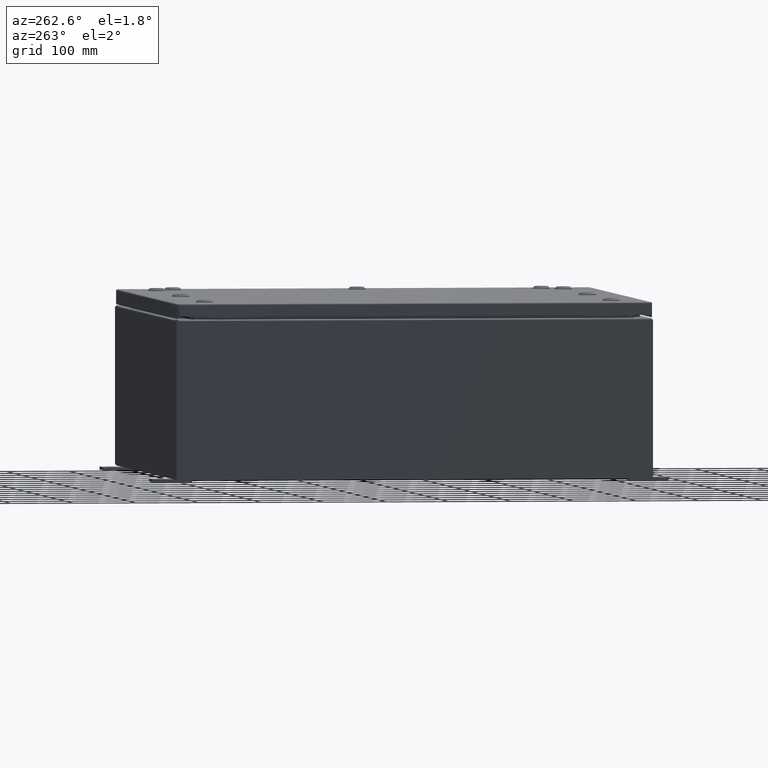
[diagram: clean part render]
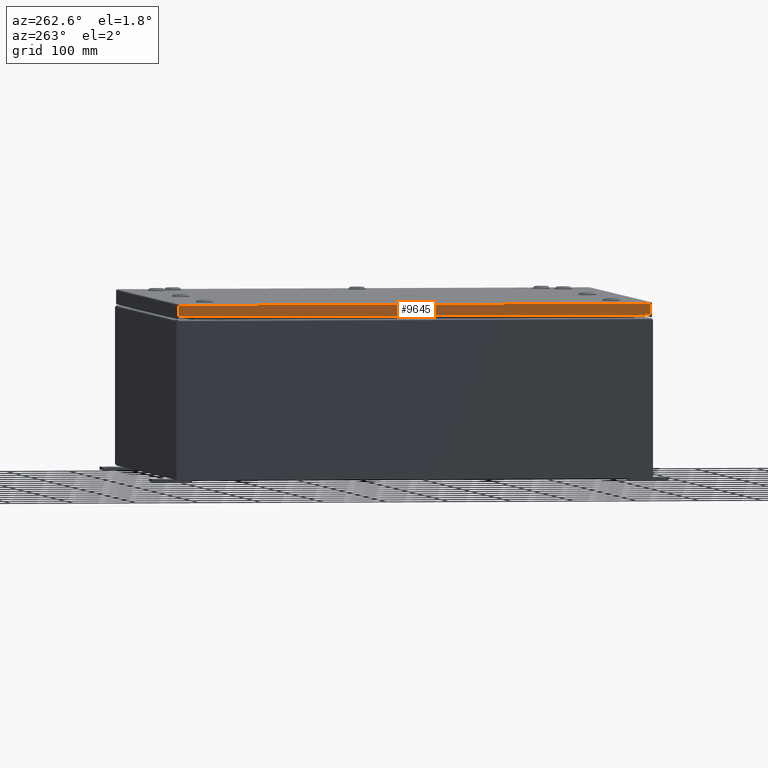
[diagram: same view with one face highlighted and labeled with its STEP entity id]
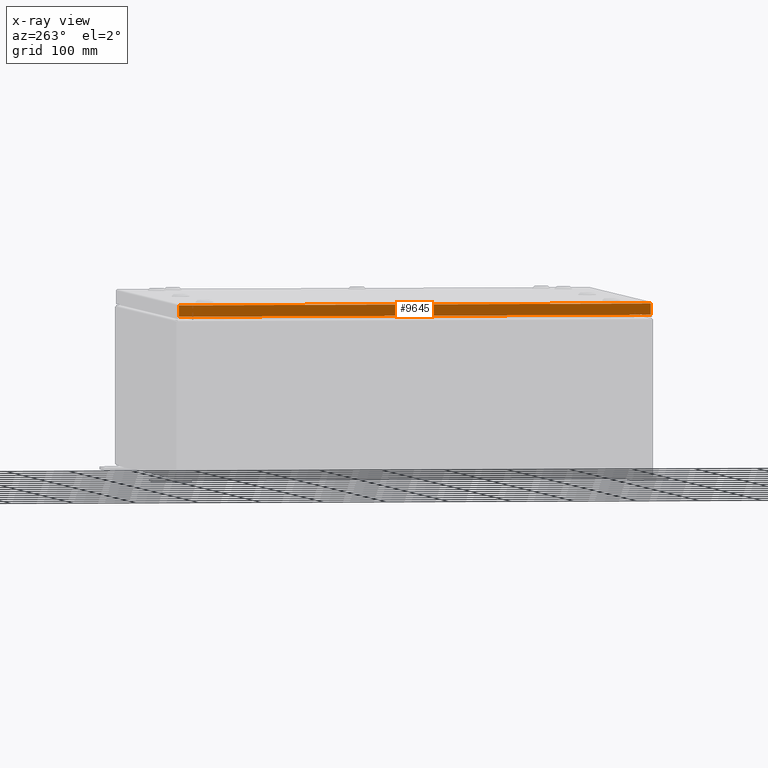
[diagram: x-ray of the same camera — body ghosted, the highlighted face saturated]
A machine part, auxiliary view. The second image highlights one B-rep face of the part: STEP entity #9645.
The next image is the same camera in x-ray: the body ghosted, the highlighted face saturated — about 0% of this face is hidden behind the body in this view.
In plain terms, the highlighted planar face has unit normal (1, 0, -0).
Its self-contained STEP definition (entity closure, byte-faithful):
#405 = CARTESIAN_POINT ( 'NONE',  ( -14.93749999999999800, -14.84865786437626400, -0.08770000000000007000 ) ) ;
#792 = EDGE_CURVE ( 'NONE', #36567, #56364, #4856, .T. ) ;
#868 = CARTESIAN_POINT ( 'NONE',  ( -14.93750000000000000, 14.84865786437627300, -0.7949999999999960400 ) ) ;
#967 = FACE_OUTER_BOUND ( 'NONE', #35002, .T. ) ;
#3705 = VERTEX_POINT ( 'NONE', #63064 ) ;
#3800 = EDGE_CURVE ( 'NONE', #3705, #56364, #44981, .T. ) ;
#4856 = LINE ( 'NONE', #63416, #57226 ) ;
#9645 = ADVANCED_FACE ( 'NONE', ( #967 ), #60119, .F. ) ;
#10004 = CARTESIAN_POINT ( 'NONE',  ( -14.93750000000000000, -14.84865786437626200, -0.7949999999999996000 ) ) ;
#12847 = VECTOR ( 'NONE', #42238, 39.37007874015748100 ) ;
#13392 = AXIS2_PLACEMENT_3D ( 'NONE', #61292, #60196, #60337 ) ;
#18009 = VECTOR ( 'NONE', #18052, 39.37007874015748100 ) ;
#18052 = DIRECTION ( 'NONE',  ( -3.034122441942816500E-015, 6.982962677686265900E-015, -1.000000000000000000 ) ) ;
#27183 = CARTESIAN_POINT ( 'NONE',  ( -14.93749999999999800, -14.84865786437626800, -0.07469999999999976700 ) ) ;
#31178 = VERTEX_POINT ( 'NONE', #405 ) ;
#33988 = ORIENTED_EDGE ( 'NONE', *, *, #3800, .T. ) ;
#34919 = LINE ( 'NONE', #46976, #60378 ) ;
#35002 = EDGE_LOOP ( 'NONE', ( #61993, #33988, #37070, #44431 ) ) ;
#36567 = VERTEX_POINT ( 'NONE', #10004 ) ;
#37070 = ORIENTED_EDGE ( 'NONE', *, *, #792, .F. ) ;
#39785 = LINE ( 'NONE', #27183, #12847 ) ;
#42238 = DIRECTION ( 'NONE',  ( -3.034122441942816500E-015, 6.982962677686265900E-015, -1.000000000000000000 ) ) ;
#44431 = ORIENTED_EDGE ( 'NONE', *, *, #60822, .F. ) ;
#44776 = EDGE_CURVE ( 'NONE', #3705, #31178, #34919, .T. ) ;
#44981 = LINE ( 'NONE', #53334, #18009 ) ;
#46976 = CARTESIAN_POINT ( 'NONE',  ( -14.93749999999999800, -14.93749999999999800, -0.08770000000000004200 ) ) ;
#47912 = DIRECTION ( 'NONE',  ( 4.379057701015054300E-047, 1.000000000000000000, 1.234475243998914400E-016 ) ) ;
#52075 = DIRECTION ( 'NONE',  ( 3.745549041839940000E-031, -1.000000000000000000, -1.104117517615176400E-045 ) ) ;
#53334 = CARTESIAN_POINT ( 'NONE',  ( -14.93749999999999800, 14.84865786437626900, 1.492706413132045700E-013 ) ) ;
#56364 = VERTEX_POINT ( 'NONE', #868 ) ;
#57226 = VECTOR ( 'NONE', #47912, 39.37007874015748100 ) ;
#60119 = PLANE ( 'NONE',  #13392 ) ;
#60196 = DIRECTION ( 'NONE',  ( 1.000000000000000000, 3.745549041839939100E-031, -3.034122441942816500E-015 ) ) ;
#60337 = DIRECTION ( 'NONE',  ( -3.034122441942816500E-015, 0.0000000000000000000, -1.000000000000000000 ) ) ;
#60378 = VECTOR ( 'NONE', #52075, 39.37007874015748100 ) ;
#60822 = EDGE_CURVE ( 'NONE', #31178, #36567, #39785, .T. ) ;
#61292 = CARTESIAN_POINT ( 'NONE',  ( -14.93749999999999800, -5.594913881248409300E-030, 4.558301763253239600E-014 ) ) ;
#61993 = ORIENTED_EDGE ( 'NONE', *, *, #44776, .F. ) ;
#63064 = CARTESIAN_POINT ( 'NONE',  ( -14.93749999999999800, 14.84865786437626900, -0.08770000000000004200 ) ) ;
#63416 = CARTESIAN_POINT ( 'NONE',  ( -14.93750000000000000, -14.93749999999999800, -0.7949999999999997100 ) ) ;